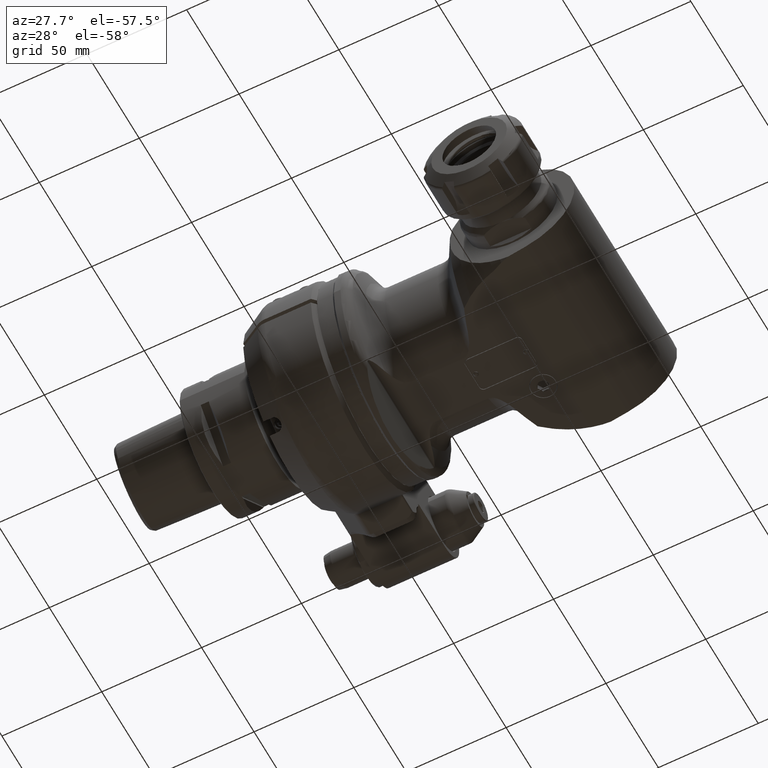
[diagram: clean part render]
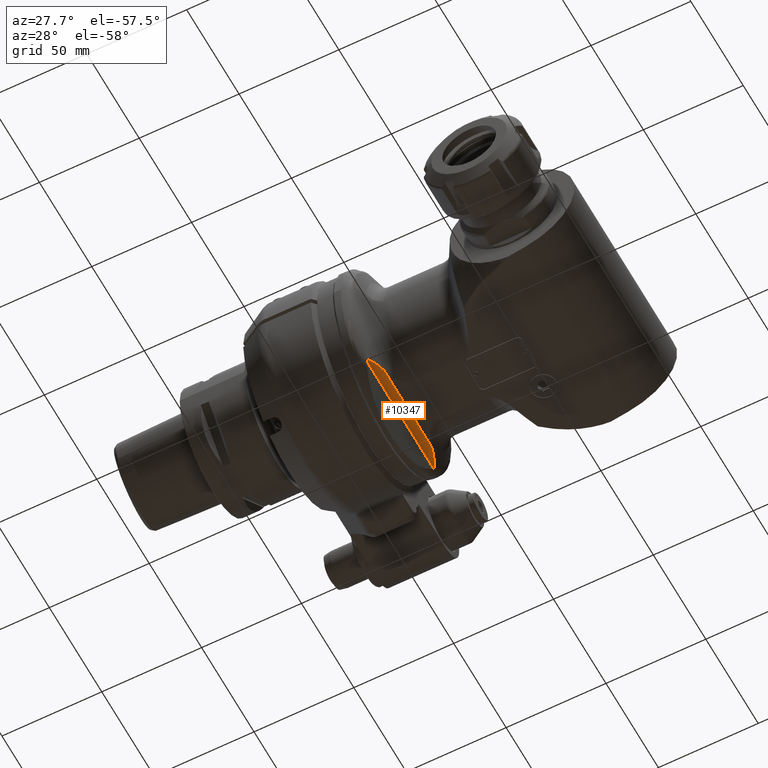
[diagram: same view with one face highlighted and labeled with its STEP entity id]
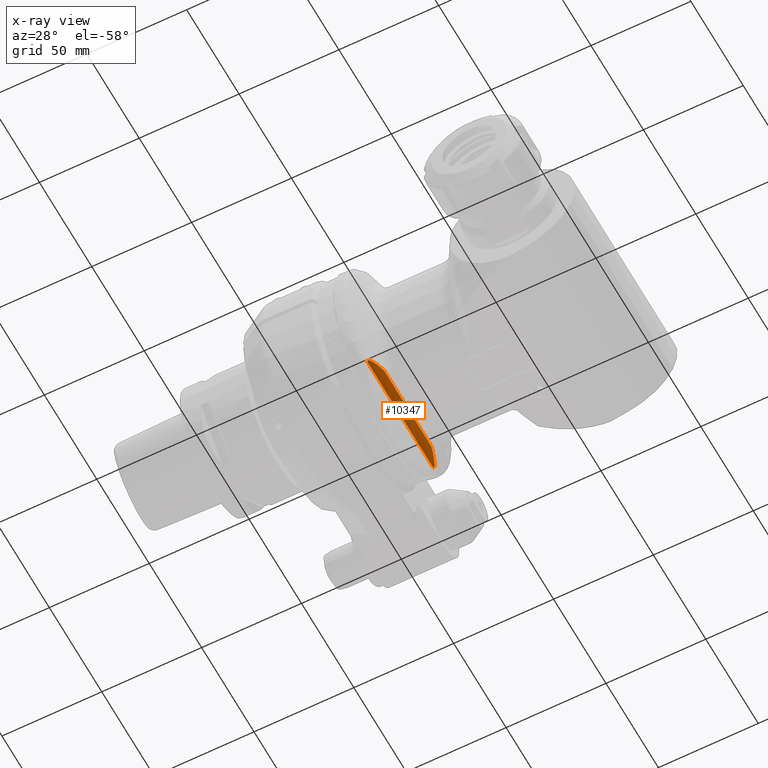
[diagram: x-ray of the same camera — body ghosted, the highlighted face saturated]
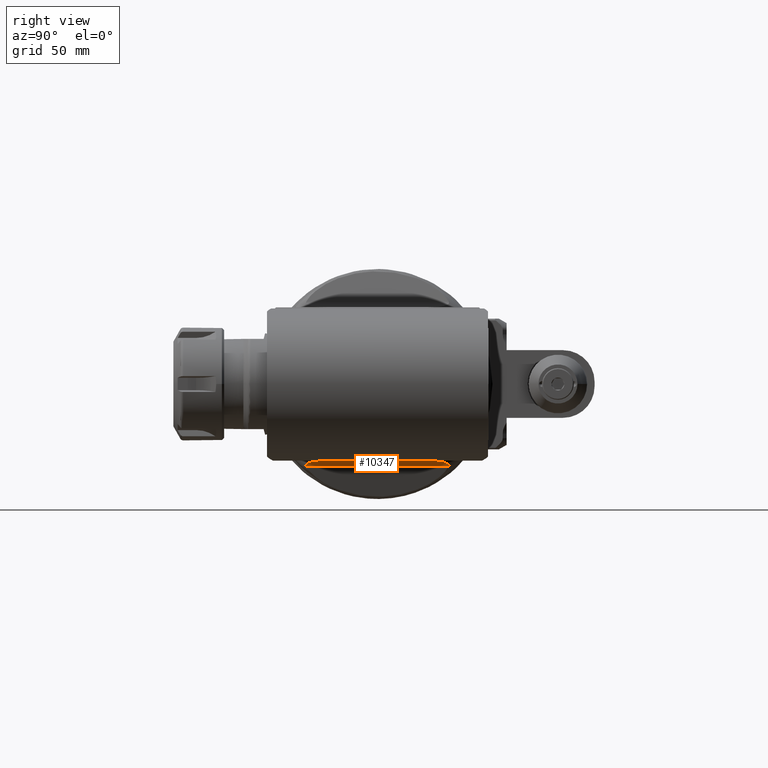
[diagram: same view with one face highlighted and labeled with its STEP entity id]
A machine part, auxiliary view. The second image highlights one B-rep face of the part: STEP entity #10347.
The next image is the same camera in x-ray: the body ghosted, the highlighted face saturated — about 0% of this face is hidden behind the body in this view.
A second angle (right view) of the same face is appended — the face is thin or edge-on in the first view.
In plain terms, the highlighted cylindrical surface (edge-blend (fillet) strip) has radius 4 mm, axis along (-0, -1, -0).
Its self-contained STEP definition (entity closure, byte-faithful):
#396=B_SPLINE_CURVE_WITH_KNOTS('',3,(#15010,#15011,#15012,#15013,#15014,
#15015,#15016,#15017,#15018,#15019,#15020,#15021),.UNSPECIFIED.,.F.,.F.,
(4,2,2,2,2,4),(5.24845933842711,5.50853326121871,5.82401085532499,5.97685118177917,
6.06018716862489,6.12453303785496),.UNSPECIFIED.);
#397=B_SPLINE_CURVE_WITH_KNOTS('',3,(#15024,#15025,#15026,#15027,#15028,
#15029,#15030,#15031,#15032,#15033,#15034,#15035),.UNSPECIFIED.,.F.,.F.,
(4,2,2,2,2,4),(1.15630163760486,1.22459873224959,1.31695713700631,1.40204907066323,
1.50898451468494,1.53966227669797),.UNSPECIFIED.);
#398=B_SPLINE_CURVE_WITH_KNOTS('',3,(#15039,#15040,#15041,#15042,#15043,
#15044,#15045),.UNSPECIFIED.,.F.,.F.,(4,3,4),(3.30248776737025,3.42753401933611,
3.62248695326381),.UNSPECIFIED.);
#399=B_SPLINE_CURVE_WITH_KNOTS('',3,(#15046,#15047,#15048,#15049,#15050,
#15051,#15052,#15053,#15054,#15055),.UNSPECIFIED.,.F.,.F.,(4,2,2,2,4),(-3.05451006112209,
-2.9596089625366,-2.75467675466263,-2.34481233891468,-2.1365485559559),
 .UNSPECIFIED.);
#794=LINE('',#14679,#1559);
#815=LINE('',#15037,#1580);
#1559=VECTOR('',#11962,45.02224602415);
#1580=VECTOR('',#12055,63.06014172074);
#2311=CYLINDRICAL_SURFACE('',#11005,4.);
#2446=FACE_OUTER_BOUND('',#3018,.T.);
#3018=EDGE_LOOP('',(#6987,#6988,#6989,#6990,#6991,#6992));
#4064=VERTEX_POINT('',#14674);
#4065=VERTEX_POINT('',#14678);
#4141=VERTEX_POINT('',#15008);
#4142=VERTEX_POINT('',#15023);
#4143=VERTEX_POINT('',#15036);
#4144=VERTEX_POINT('',#15038);
#5218=EDGE_CURVE('',#4065,#4064,#794,.T.);
#5308=EDGE_CURVE('',#4064,#4141,#396,.T.);
#5309=EDGE_CURVE('',#4141,#4142,#397,.T.);
#5310=EDGE_CURVE('',#4142,#4143,#815,.T.);
#5311=EDGE_CURVE('',#4143,#4144,#398,.T.);
#5312=EDGE_CURVE('',#4144,#4065,#399,.T.);
#6987=ORIENTED_EDGE('',*,*,#5308,.T.);
#6988=ORIENTED_EDGE('',*,*,#5309,.T.);
#6989=ORIENTED_EDGE('',*,*,#5310,.T.);
#6990=ORIENTED_EDGE('',*,*,#5311,.T.);
#6991=ORIENTED_EDGE('',*,*,#5312,.T.);
#6992=ORIENTED_EDGE('',*,*,#5218,.T.);
#10347=ADVANCED_FACE('',(#2446),#2311,.F.);
#11005=AXIS2_PLACEMENT_3D('',#15022,#12053,#12054);
#11962=DIRECTION('',(0.,-1.,0.));
#12053=DIRECTION('center_axis',(0.,-1.,0.));
#12054=DIRECTION('ref_axis',(-1.,0.,0.));
#12055=DIRECTION('',(4.146513465157E-14,1.,1.291278378008E-13));
#14674=CARTESIAN_POINT('',(199.8639272009,-22.51112301207,-34.));
#14678=CARTESIAN_POINT('',(199.8639272009,22.51112301208,-34.));
#14679=CARTESIAN_POINT('',(199.8639272009,22.51112301208,-34.));
#15008=CARTESIAN_POINT('',(196.909284501613,-31.1976416522546,-35.3036902037658));
#15010=CARTESIAN_POINT('Ctrl Pts',(199.86392720093,-22.5111230120776,-34.));
#15011=CARTESIAN_POINT('Ctrl Pts',(199.627045993342,-23.4313065587686,-33.9999999999982));
#15012=CARTESIAN_POINT('Ctrl Pts',(199.367019023223,-24.3646443958014,-34.0229950411459));
#15013=CARTESIAN_POINT('Ctrl Pts',(198.819156370089,-26.2003289654021,-34.1267752193155));
#15014=CARTESIAN_POINT('Ctrl Pts',(198.43104870305,-27.3952659527972,-34.2447406086038));
#15015=CARTESIAN_POINT('Ctrl Pts',(197.907861747891,-28.8427082796701,-34.5056881458522));
#15016=CARTESIAN_POINT('Ctrl Pts',(197.694928596664,-29.4018627106173,-34.6312606018711));
#15017=CARTESIAN_POINT('Ctrl Pts',(197.407485512355,-30.1042242458417,-34.8406267936858));
#15018=CARTESIAN_POINT('Ctrl Pts',(197.282818318803,-30.3966997382881,-34.9407984684583));
#15019=CARTESIAN_POINT('Ctrl Pts',(197.093380382312,-30.8172888450218,-35.1127014465964));
#15020=CARTESIAN_POINT('Ctrl Pts',(197.002855799162,-31.0106402120274,-35.2011538584871));
#15021=CARTESIAN_POINT('Ctrl Pts',(196.909284501701,-31.1976416525832,-35.3036902032465));
#15022=CARTESIAN_POINT('Origin',(199.8639272009,0.,-38.));
#15023=CARTESIAN_POINT('',(196.1051567178,-31.53007086037,-36.63191942671));
#15024=CARTESIAN_POINT('Ctrl Pts',(196.90928450166,-31.1976416525379,-35.3036902032917));
#15025=CARTESIAN_POINT('Ctrl Pts',(196.867802760606,-31.2805425470323,-35.3491463016619));
#15026=CARTESIAN_POINT('Ctrl Pts',(196.822525568012,-31.3582431962635,-35.4008129039564));
#15027=CARTESIAN_POINT('Ctrl Pts',(196.707822409925,-31.5199050766533,-35.5403684488626));
#15028=CARTESIAN_POINT('Ctrl Pts',(196.636305973062,-31.5952282481428,-35.6335627887394));
#15029=CARTESIAN_POINT('Ctrl Pts',(196.492629336941,-31.6889909577115,-35.8437858272666));
#15030=CARTESIAN_POINT('Ctrl Pts',(196.425259734238,-31.7086422740172,-35.9523251351443));
#15031=CARTESIAN_POINT('Ctrl Pts',(196.281442863696,-31.6992777188419,-36.2130204636942));
#15032=CARTESIAN_POINT('Ctrl Pts',(196.211711753331,-31.6567958545707,-36.3612311502517));
#15033=CARTESIAN_POINT('Ctrl Pts',(196.136859439701,-31.5738049700807,-36.5470853575159));
#15034=CARTESIAN_POINT('Ctrl Pts',(196.120710741279,-31.5530527069985,-36.5891850982887));
#15035=CARTESIAN_POINT('Ctrl Pts',(196.105156717758,-31.5300708603673,-36.6319194266932));
#15036=CARTESIAN_POINT('',(196.1051567178,31.53007086037,-36.6319194267));
#15037=CARTESIAN_POINT('',(196.1051567178,-31.53007086037,-36.63191942671));
#15038=CARTESIAN_POINT('',(196.90928450161,31.1976416522627,-35.3036902037679));
#15039=CARTESIAN_POINT('Ctrl Pts',(196.10515671776,31.5300708603711,-36.6319194266862));
#15040=CARTESIAN_POINT('Ctrl Pts',(196.181328649603,31.642618694239,-36.4226387639543));
#15041=CARTESIAN_POINT('Ctrl Pts',(196.27336237027,31.7087119497786,-36.2221670954921));
#15042=CARTESIAN_POINT('Ctrl Pts',(196.387018939735,31.7048861411535,-36.0223476181483));
#15043=CARTESIAN_POINT('Ctrl Pts',(196.564214827889,31.6989215272257,-35.7108197414494));
#15044=CARTESIAN_POINT('Ctrl Pts',(196.765367009999,31.4852594932762,-35.4613964010538));
#15045=CARTESIAN_POINT('Ctrl Pts',(196.909284501656,31.197641652545,-35.3036902032955));
#15046=CARTESIAN_POINT('Ctrl Pts',(196.909284501697,31.1976416525903,-35.3036902032504));
#15047=CARTESIAN_POINT('Ctrl Pts',(197.029971361309,30.9564499921564,-35.1714403597522));
#15048=CARTESIAN_POINT('Ctrl Pts',(197.147682954382,30.7013194328069,-35.0596517296656));
#15049=CARTESIAN_POINT('Ctrl Pts',(197.516375656583,29.8592577831221,-34.7444200075469));
#15050=CARTESIAN_POINT('Ctrl Pts',(197.761821014422,29.2352053394933,-34.5860807400296));
#15051=CARTESIAN_POINT('Ctrl Pts',(198.482625639969,27.27089870303,-34.2070083219589));
#15052=CARTESIAN_POINT('Ctrl Pts',(198.930936677578,25.860251445672,-34.091662143159));
#15053=CARTESIAN_POINT('Ctrl Pts',(199.500786078748,23.8818038340577,-34.0118029779603));
#15054=CARTESIAN_POINT('Ctrl Pts',(199.686067728808,23.2020320189016,-33.9999999999988));
#15055=CARTESIAN_POINT('Ctrl Pts',(199.863927200927,22.511123012087,-34.));